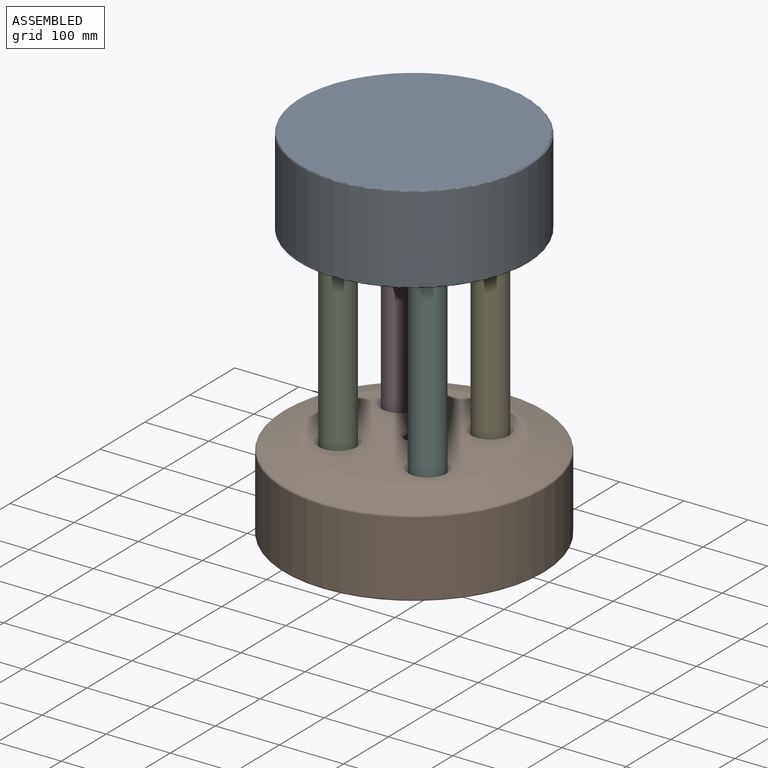
[diagram: assembled view]
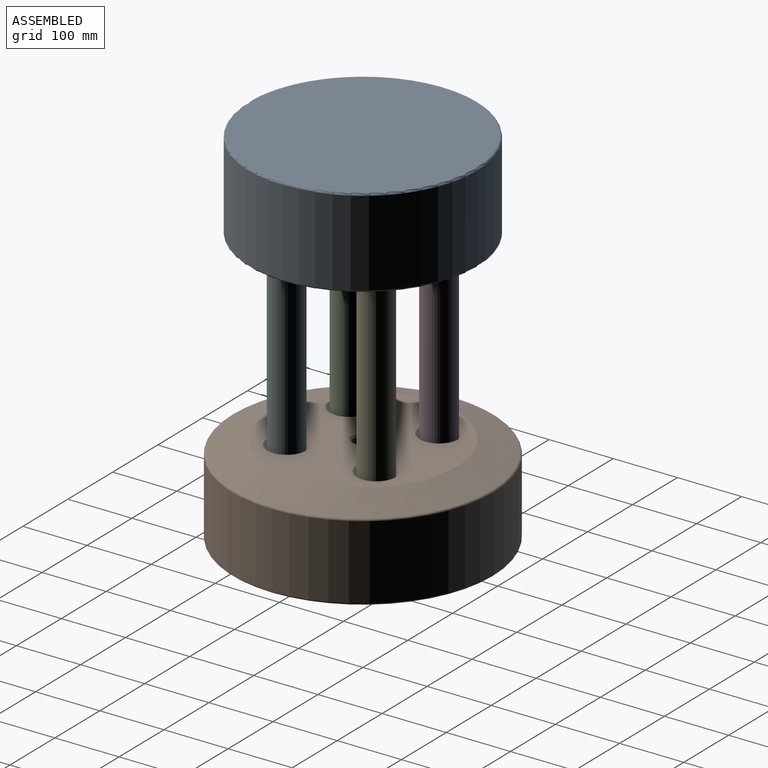
[diagram: assembled view, second angle]
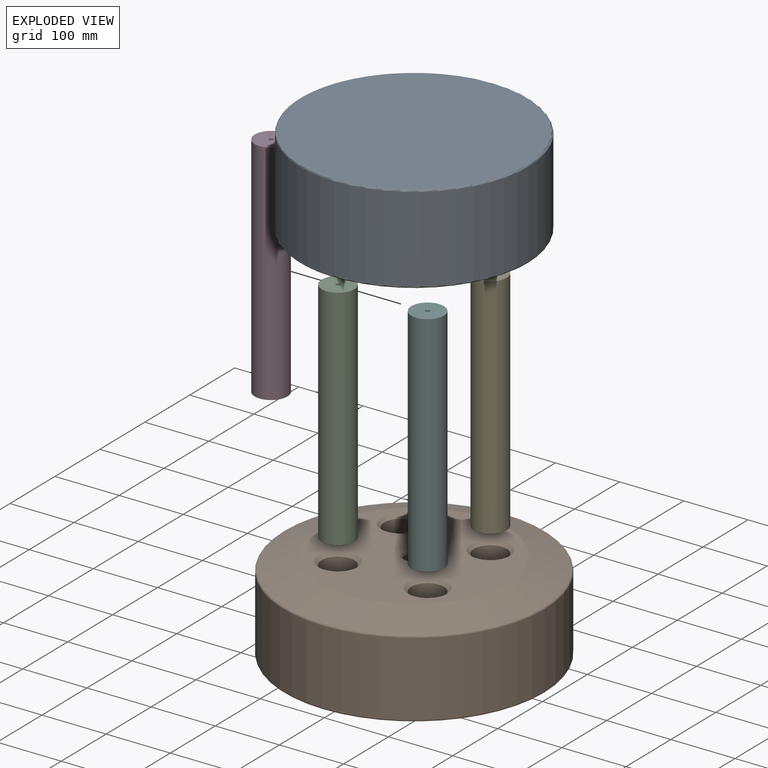
[diagram: exploded view]
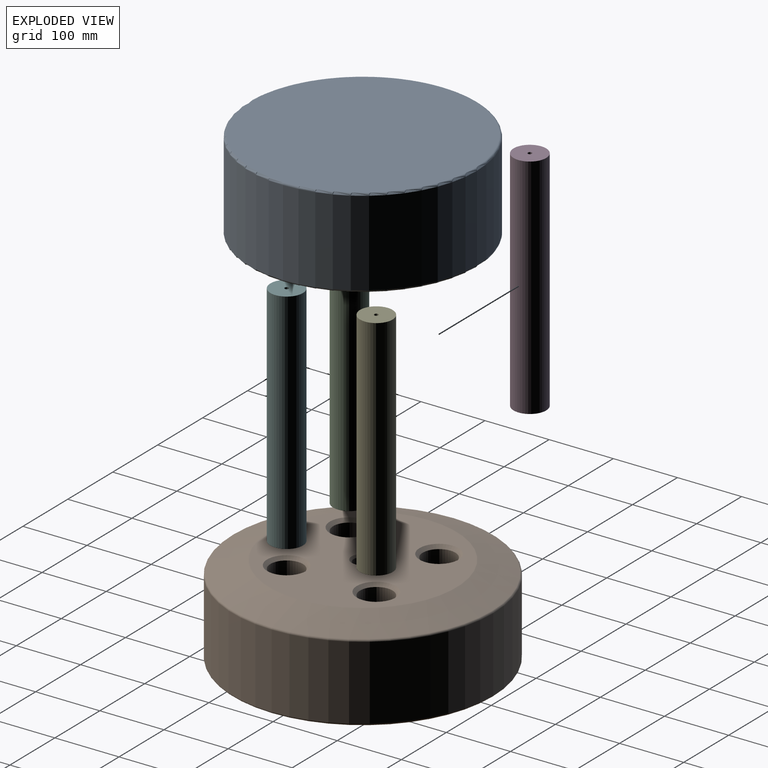
[diagram: exploded view, second angle]
ASSEMBLY  parts=6 mates=5
PART A: 32 faces, bbox 384.9x384.9x139.7 mm
  f0: cylinder r=177.8mm len=355.6mm, axis (0,0,-1), area 148972mm2, adj f24,f25
  f1: plane 349.25x349.25mm, normal (0,0,1), area 95799.4mm2, adj f25
  f2: plane 349.25x349.25mm, normal (0,0,-1), area 84852.2mm2, adj f4,f6,f24,f26,f27,f28,f29,f30
  f3: cylinder r=3.97mm len=9.53mm, axis (0,0,-1), area 130.6mm2, adj f4,f6,f7,f27
  f4: cylinder r=12.7mm len=24.16mm, axis (0,0,-1), area 395.1mm2, adj f2,f3,f5,f7,f26,f27
  f5: cylinder r=3.97mm len=9.53mm, axis (0,0,-1), area 130.6mm2, adj f4,f6,f7,f26
  f6: cylinder r=12.7mm len=24.16mm, axis (0,0,-1), area 395.1mm2, adj f2,f3,f5,f7,f26,f27
  f7: plane 33.34x25.4mm, normal (0,0,-1), area 559.5mm2, adj f3,f4,f5,f6
  f8: cylinder r=25.4mm len=50.8mm, axis (0,0,-1), area 4053.7mm2, adj f9,f29
  f9: plane 50.8x50.8mm, normal (0,0,-1), area 1977.3mm2, adj f8,f22
  f10: cylinder r=25.4mm len=50.8mm, axis (0,0,-1), area 4053.7mm2, adj f11,f30
  f11: plane 50.8x50.8mm, normal (0,0,-1), area 1977.3mm2, adj f10,f20
  f12: cylinder r=25.4mm len=50.8mm, axis (0,0,-1), area 4053.7mm2, adj f13,f31
  f13: plane 50.8x50.8mm, normal (0,0,-1), area 1977.3mm2, adj f12,f18
  f14: cylinder r=25.4mm len=50.8mm, axis (0,0,-1), area 4053.7mm2, adj f15,f28
  f15: plane 50.8x50.8mm, normal (0,0,-1), area 1977.3mm2, adj f14,f16
  f16: cylinder r=3.97mm len=25.4mm, axis (0,0,-1), area 633.4mm2, adj f15,f17
  f17: plane 7.94x7.94mm, normal (0,0,-1), area 49.5mm2, adj f16
  f18: cylinder r=3.97mm len=25.4mm, axis (0,0,-1), area 633.4mm2, adj f13,f19
  f19: plane 7.94x7.94mm, normal (0,0,-1), area 49.5mm2, adj f18
  f20: cylinder r=3.97mm len=25.4mm, axis (0,0,-1), area 633.4mm2, adj f11,f21
  f21: plane 7.94x7.94mm, normal (0,0,-1), area 49.5mm2, adj f20
  f22: cylinder r=3.97mm len=25.4mm, axis (0,0,-1), area 633.4mm2, adj f9,f23
  f23: plane 7.94x7.94mm, normal (0,0,-1), area 49.5mm2, adj f22
  f24: torus R=174.62mm, axis (0,0,1), area 5535.4mm2, adj f0,f2
  f25: torus R=174.62mm, axis (0,0,1), area 5535.4mm2, adj f0,f1
  f26: cone r=7.14mm half-angle=45deg, axis (0,0,-1), area 89.7mm2, adj f2,f4,f5,f6
  f27: cone r=3.97mm half-angle=45deg, axis (0,0,-1), area 89.7mm2, adj f2,f3,f4,f6
  f28: cone r=25.4mm half-angle=45deg, axis (0,0,-1), area 761.4mm2, adj f2,f14
  f29: cone r=25.4mm half-angle=45deg, axis (0,0,-1), area 761.4mm2, adj f2,f8
  f30: cone r=25.4mm half-angle=45deg, axis (0,0,-1), area 761.4mm2, adj f2,f10
  f31: cone r=25.4mm half-angle=45deg, axis (0,0,-1), area 761.4mm2, adj f2,f12
PART B: 44 faces, bbox 439.9x439.9x139.7 mm
  f0: plane 291.07x291.07mm, normal (0,0,1), area 53907.6mm2, adj f14,f31,f32,f33,f34,f41
  f1: cylinder r=3.97mm len=63.5mm, axis (0,0,-1), area 1583.5mm2, adj f22,f30
  f2: cylinder r=3.97mm len=63.5mm, axis (0,0,-1), area 1583.5mm2, adj f20,f27
  f3: cylinder r=3.97mm len=63.5mm, axis (0,0,-1), area 1583.5mm2, adj f18,f26
  f4: cylinder r=3.97mm len=63.5mm, axis (0,0,-1), area 1583.5mm2, adj f16,f23
  f5: cylinder r=203.2mm len=406.4mm, axis (0,0,-1), area 147063.7mm2, adj f42,f43
  f6: plane 400.05x400.05mm, normal (0,0,-1), area 120658.3mm2, adj f9,f11,f35,f36,f37,f38,f39,f40
  f7: cone r=146.05mm half-angle=71.6deg, axis (0,0,-1), area 62717.2mm2, adj f41,f42
  f8: cylinder r=4.76mm len=17.15mm, axis (0,0,-1), area 271.9mm2, adj f9,f11,f12,f39
  f9: cylinder r=25.4mm len=49.91mm, axis (0,0,-1), area 1535.4mm2, adj f6,f8,f10,f12,f39,f40
  f10: cylinder r=4.76mm len=17.15mm, axis (0,0,-1), area 271.9mm2, adj f9,f11,f12,f40
  f11: cylinder r=25.4mm len=49.91mm, axis (0,0,-1), area 1535.4mm2, adj f6,f8,f10,f12,f39,f40
  f12: plane 60.33x50.8mm, normal (0,0,-1), area 1459.6mm2, adj f8,f9,f10,f11,f13
  f13: cylinder r=14.29mm len=114.3mm, axis (0,0,-1), area 10260.8mm2, adj f12,f14
  f14: cone r=17.46mm half-angle=45deg, axis (0,0,1), area 447.9mm2, adj f0,f13
  f15: cylinder r=9.53mm len=33.02mm, axis (0,0,-1), area 1976.2mm2, adj f16,f38
  f16: plane 19.05x19.05mm, normal (0,0,-1), area 235.5mm2, adj f4,f15
  f17: cylinder r=9.53mm len=33.02mm, axis (0,0,-1), area 1976.2mm2, adj f18,f37
  f18: plane 19.05x19.05mm, normal (0,0,-1), area 235.5mm2, adj f3,f17
  f19: cylinder r=9.53mm len=33.02mm, axis (0,0,-1), area 1976.2mm2, adj f20,f36
  f20: plane 19.05x19.05mm, normal (0,0,-1), area 235.5mm2, adj f2,f19
  f21: cylinder r=9.53mm len=33.02mm, axis (0,0,-1), area 1976.2mm2, adj f22,f35
  f22: plane 19.05x19.05mm, normal (0,0,-1), area 235.5mm2, adj f1,f21
  f23: plane 50.8x50.8mm, normal (0,0,1), area 1977.3mm2, adj f4,f24
  f24: cylinder r=25.4mm len=50.8mm, axis (0,0,1), area 5269.8mm2, adj f23,f33
  f25: cylinder r=25.4mm len=50.8mm, axis (0,0,1), area 5269.8mm2, adj f26,f32
  f26: plane 50.8x50.8mm, normal (0,0,1), area 1977.3mm2, adj f3,f25
  f27: plane 50.8x50.8mm, normal (0,0,1), area 1977.3mm2, adj f2,f28
  f28: cylinder r=25.4mm len=50.8mm, axis (0,0,1), area 5269.8mm2, adj f27,f31
  f29: cylinder r=25.4mm len=50.8mm, axis (0,0,1), area 5269.8mm2, adj f30,f34
  f30: plane 50.8x50.8mm, normal (0,0,1), area 1977.3mm2, adj f1,f29
  f31: cone r=25.4mm half-angle=45deg, axis (0,0,1), area 1261.2mm2, adj f0,f28
  f32: cone r=30.48mm half-angle=45deg, axis (0,0,1), area 1261.2mm2, adj f0,f25
  f33: cone r=25.4mm half-angle=45deg, axis (0,0,1), area 1261.2mm2, adj f0,f24
  f34: cone r=30.48mm half-angle=45deg, axis (0,0,1), area 1261.2mm2, adj f0,f29
  f35: cone r=9.53mm half-angle=45deg, axis (0,0,-1), area 544.6mm2, adj f6,f21
  f36: cone r=9.53mm half-angle=45deg, axis (0,0,-1), area 544.6mm2, adj f6,f19
  f37: cone r=9.53mm half-angle=45deg, axis (0,0,-1), area 544.6mm2, adj f6,f17
  f38: cone r=9.53mm half-angle=45deg, axis (0,0,-1), area 544.6mm2, adj f6,f15
  f39: cone r=4.76mm half-angle=45deg, axis (0,0,-1), area 180.6mm2, adj f6,f8,f9,f11
  f40: cone r=9.84mm half-angle=45deg, axis (0,0,-1), area 180.6mm2, adj f6,f9,f10,f11
  f41: torus R=145.53mm, axis (0,0,1), area 937.4mm2, adj f0,f7
  f42: torus R=200.03mm, axis (0,0,-1), area 5044.2mm2, adj f5,f7
  f43: torus R=200.03mm, axis (0,0,1), area 6331.3mm2, adj f5,f6
PART C: 7 faces, bbox 50.8x50.8x355.6 mm
  f0: cylinder r=25.4mm len=355.6mm, axis (0,0,-1), area 56751.2mm2, adj f1,f2
  f1: plane 50.8x50.8mm, normal (0,0,1), area 1995.2mm2, adj f0,f3
  f2: plane 50.8x50.8mm, normal (0,0,-1), area 1995.2mm2, adj f0,f5
  f3: cylinder r=3.17mm len=25.4mm, axis (0,0,1), area 506.7mm2, adj f1,f4
  f4: plane 6.35x6.35mm, normal (0,0,1), area 31.7mm2, adj f3
  f5: cylinder r=3.17mm len=25.4mm, axis (0,0,-1), area 506.7mm2, adj f2,f6
  f6: plane 6.35x6.35mm, normal (0,0,-1), area 31.7mm2, adj f5
PART D: same geometry as C
PART E: same geometry as C
PART F: same geometry as C
PLACE A t=(0,0,428.63)mm
PLACE B at identity
PLACE C rot(axis=(0,0,-1),0deg) t=(-69.85,-69.85,279.4)mm
PLACE D rot(axis=(0,0,-1),90deg) t=(-69.85,69.85,279.4)mm
PLACE E rot(axis=(0,0,1),180deg) t=(69.85,69.85,279.4)mm
PLACE F rot(axis=(0,0,1),90deg) t=(69.85,-69.85,279.4)mm
MATE cylindrical A.f10 <-> C.f0  axis (0,0,-1) through (-69.85,-69.85,457.2)mm
MATE planar A.f14 <-> E.f0  axis (0,0,-1) through (69.85,69.85,457.2)mm
MATE planar F.f0 <-> B.f1  axis (0,0,-1) through (69.85,-69.85,101.6)mm
MATE cylindrical A.f12 <-> F.f0  axis (0,0,-1) through (69.85,-69.85,457.2)mm
MATE cylindrical C.f0 <-> B.f4  axis (0,0,-1) through (-69.85,-69.85,101.6)mm
